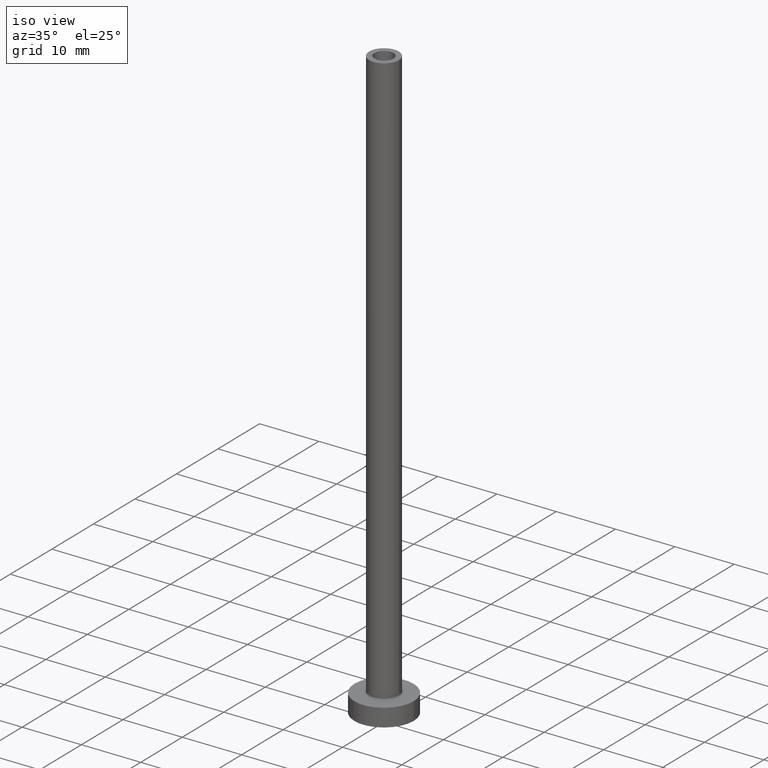
[diagram: clean part render]
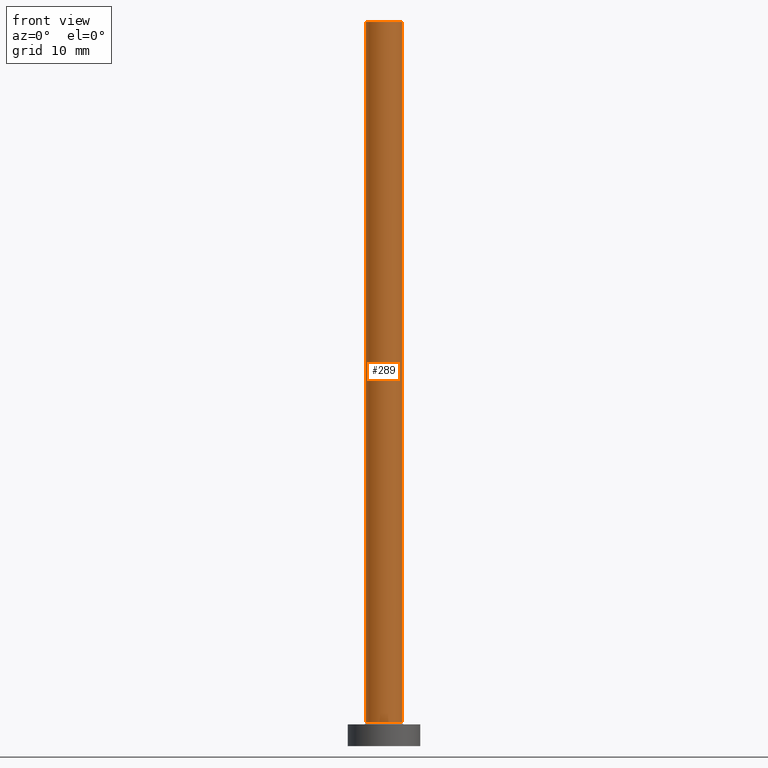
[diagram: tour spotlight — one face highlighted and labeled with its STEP entity id]
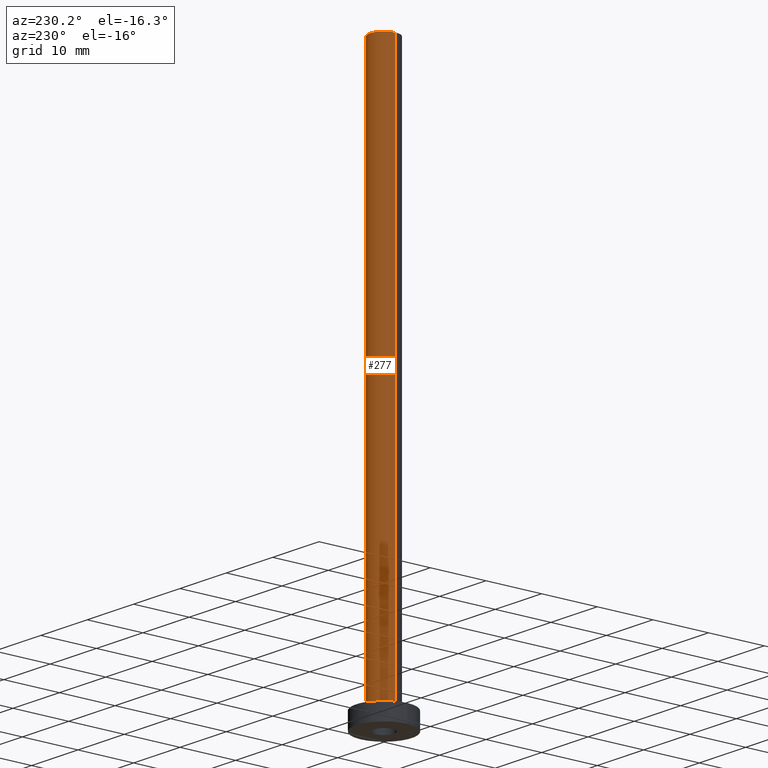
[diagram: tour spotlight — one face highlighted and labeled with its STEP entity id]
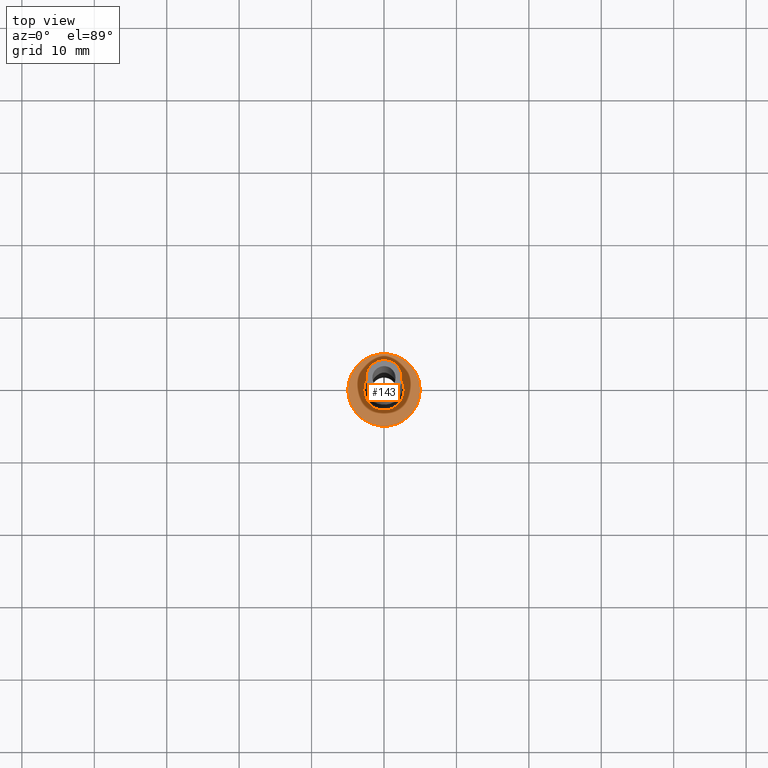
[diagram: tour spotlight — one face highlighted and labeled with its STEP entity id]
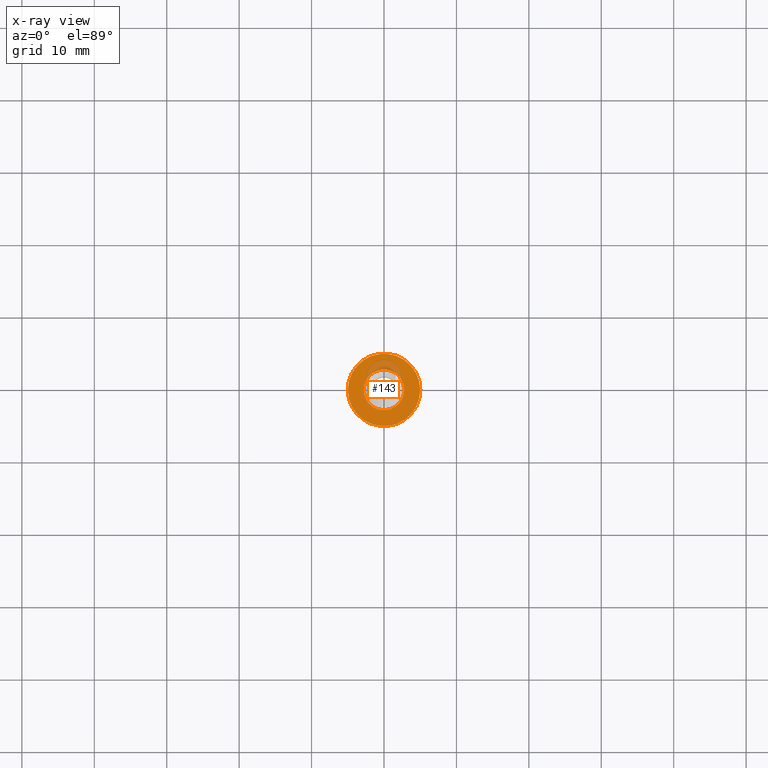
[diagram: x-ray of the same camera — body ghosted, this tour face saturated]
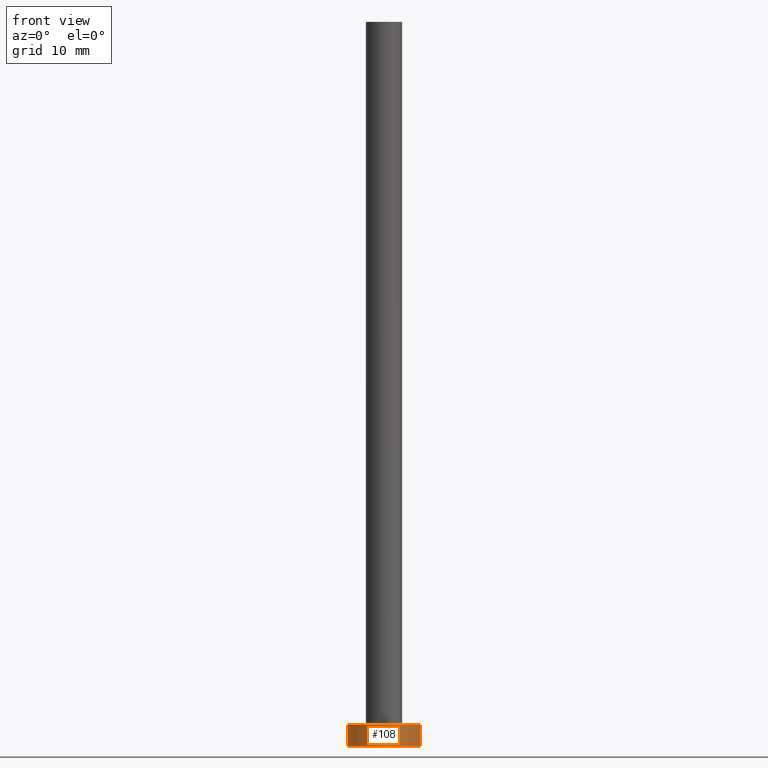
[diagram: tour spotlight — one face highlighted and labeled with its STEP entity id]
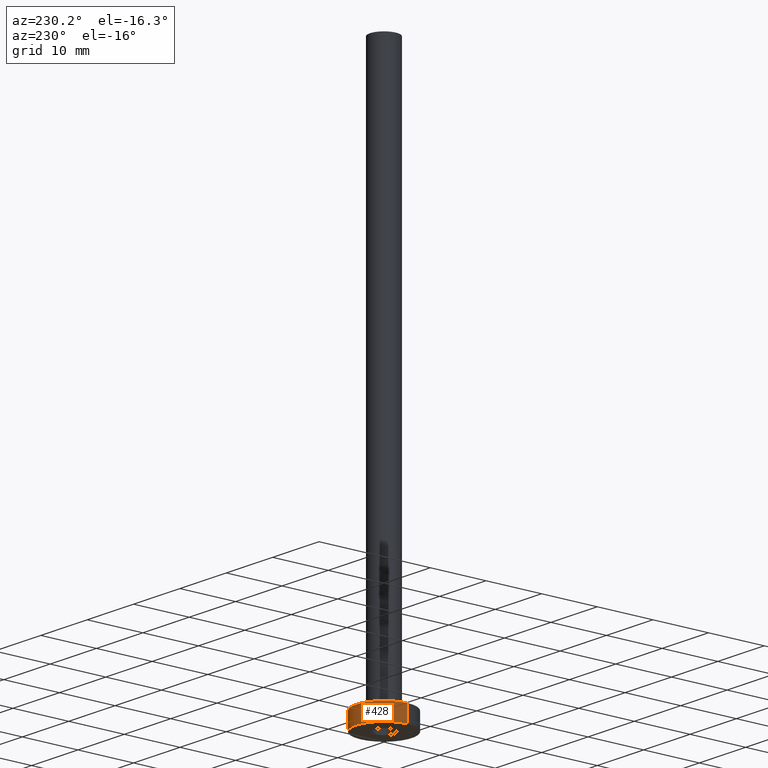
[diagram: tour spotlight — one face highlighted and labeled with its STEP entity id]
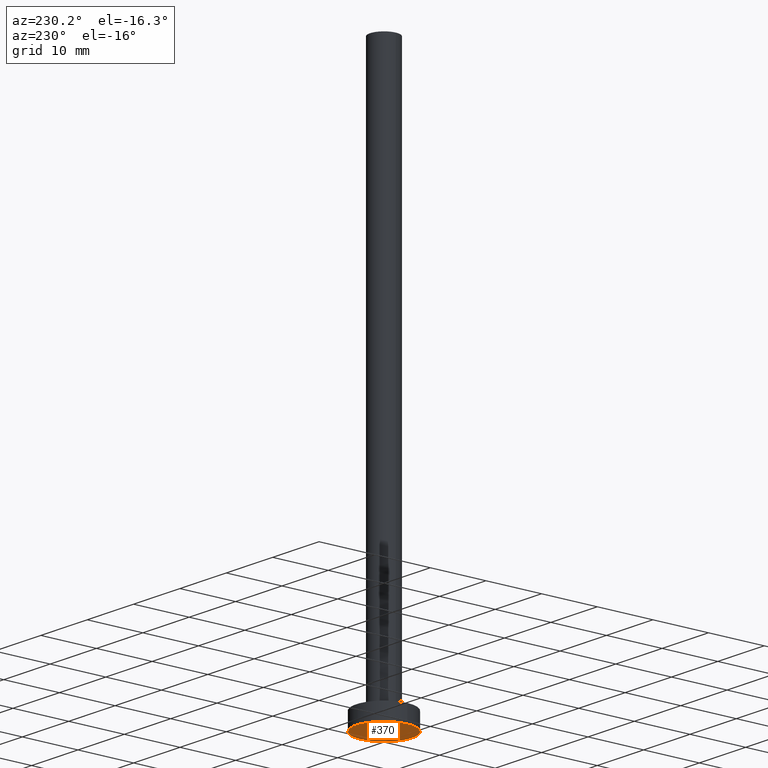
[diagram: tour spotlight — one face highlighted and labeled with its STEP entity id]
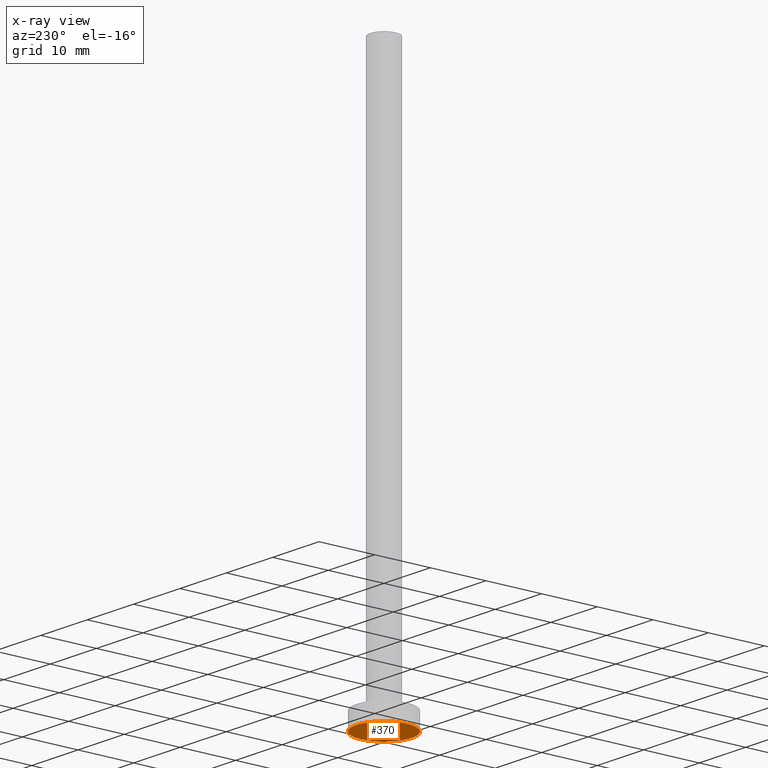
[diagram: x-ray of the same camera — body ghosted, this tour face saturated]
A machine part: a face-by-face anatomy tour. The part has 14 B-rep faces; the first image is the clean iso view, then the 6 largest visible faces are spotlighted one at a time (largest first), each with its STEP entity span.

Face 1 — front view, entity #289. In plain terms, the highlighted cylindrical surface (edge-blend (fillet) strip) has radius 2.5 mm, axis along (-0, -0, -1).
Definition (entity closure, byte-faithful):
#16 = DIRECTION ( 'NONE',  ( 0.000000000000000000, 0.000000000000000000, 1.000000000000000000 ) ) ;
#19 = FACE_OUTER_BOUND ( 'NONE', #111, .T. ) ;
#20 = ORIENTED_EDGE ( 'NONE', *, *, #394, .F. ) ;
#24 = DIRECTION ( 'NONE',  ( -1.000000000000000000, 0.000000000000000000, 0.000000000000000000 ) ) ;
#27 = CIRCLE ( 'NONE', #243, 2.500000000000000000 ) ;
#50 = CARTESIAN_POINT ( 'NONE',  ( 2.500000000000000000, 3.061616997868382648E-16, 100.0000000000000000 ) ) ;
#53 = VERTEX_POINT ( 'NONE', #264 ) ;
#67 = CARTESIAN_POINT ( 'NONE',  ( 0.000000000000000000, 0.000000000000000000, 3.299999999999997158 ) ) ;
#89 = LINE ( 'NONE', #193, #412 ) ;
#111 = EDGE_LOOP ( 'NONE', ( #332, #20, #224, #255 ) ) ;
#131 = CARTESIAN_POINT ( 'NONE',  ( 2.500000000000000000, 3.061616997868382648E-16, 3.299999999999997158 ) ) ;
#140 = VERTEX_POINT ( 'NONE', #238 ) ;
#154 = CYLINDRICAL_SURFACE ( 'NONE', #164, 2.500000000000000000 ) ;
#162 = EDGE_CURVE ( 'NONE', #53, #297, #169, .T. ) ;
#164 = AXIS2_PLACEMENT_3D ( 'NONE', #447, #409, #24 ) ;
#169 = CIRCLE ( 'NONE', #436, 2.500000000000000000 ) ;
#174 = VERTEX_POINT ( 'NONE', #276 ) ;
#181 = DIRECTION ( 'NONE',  ( 1.000000000000000000, 0.000000000000000000, 0.000000000000000000 ) ) ;
#193 = CARTESIAN_POINT ( 'NONE',  ( -2.500000000000000000, 0.000000000000000000, 100.0000000000000000 ) ) ;
#224 = ORIENTED_EDGE ( 'NONE', *, *, #444, .T. ) ;
#238 = CARTESIAN_POINT ( 'NONE',  ( -2.500000000000000000, 0.000000000000000000, 100.0000000000000000 ) ) ;
#243 = AXIS2_PLACEMENT_3D ( 'NONE', #334, #16, #181 ) ;
#255 = ORIENTED_EDGE ( 'NONE', *, *, #162, .T. ) ;
#264 = CARTESIAN_POINT ( 'NONE',  ( -2.500000000000000000, 0.000000000000000000, 3.299999999999997158 ) ) ;
#270 = DIRECTION ( 'NONE',  ( -0.000000000000000000, -0.000000000000000000, -1.000000000000000000 ) ) ;
#276 = CARTESIAN_POINT ( 'NONE',  ( 2.500000000000000000, 3.061616997868382648E-16, 100.0000000000000000 ) ) ;
#289 = ADVANCED_FACE ( 'NONE', ( #19 ), #154, .T. ) ;
#297 = VERTEX_POINT ( 'NONE', #131 ) ;
#308 = DIRECTION ( 'NONE',  ( 0.000000000000000000, 0.000000000000000000, 1.000000000000000000 ) ) ;
#319 = EDGE_CURVE ( 'NONE', #174, #297, #371, .T. ) ;
#332 = ORIENTED_EDGE ( 'NONE', *, *, #319, .F. ) ;
#334 = CARTESIAN_POINT ( 'NONE',  ( 0.000000000000000000, 0.000000000000000000, 100.0000000000000000 ) ) ;
#371 = LINE ( 'NONE', #50, #374 ) ;
#374 = VECTOR ( 'NONE', #439, 1000.000000000000000 ) ;
#394 = EDGE_CURVE ( 'NONE', #140, #174, #27, .T. ) ;
#409 = DIRECTION ( 'NONE',  ( -0.000000000000000000, -0.000000000000000000, -1.000000000000000000 ) ) ;
#412 = VECTOR ( 'NONE', #270, 1000.000000000000000 ) ;
#436 = AXIS2_PLACEMENT_3D ( 'NONE', #67, #308, #456 ) ;
#439 = DIRECTION ( 'NONE',  ( -0.000000000000000000, -0.000000000000000000, -1.000000000000000000 ) ) ;
#444 = EDGE_CURVE ( 'NONE', #140, #53, #89, .T. ) ;
#447 = CARTESIAN_POINT ( 'NONE',  ( 0.000000000000000000, 0.000000000000000000, 100.0000000000000000 ) ) ;
#456 = DIRECTION ( 'NONE',  ( 1.000000000000000000, 0.000000000000000000, 0.000000000000000000 ) ) ;

Face 2 — auxiliary view, entity #277. In plain terms, the highlighted cylindrical surface (edge-blend (fillet) strip) has radius 2.5 mm, axis along (-0, -0, -1).
Definition (entity closure, byte-faithful):
#12 = ORIENTED_EDGE ( 'NONE', *, *, #419, .F. ) ;
#26 = DIRECTION ( 'NONE',  ( 1.000000000000000000, 0.000000000000000000, 0.000000000000000000 ) ) ;
#50 = CARTESIAN_POINT ( 'NONE',  ( 2.500000000000000000, 3.061616997868382648E-16, 100.0000000000000000 ) ) ;
#53 = VERTEX_POINT ( 'NONE', #264 ) ;
#79 = CIRCLE ( 'NONE', #124, 2.500000000000000000 ) ;
#89 = LINE ( 'NONE', #193, #412 ) ;
#124 = AXIS2_PLACEMENT_3D ( 'NONE', #323, #274, #26 ) ;
#129 = EDGE_LOOP ( 'NONE', ( #12, #296, #451, #381 ) ) ;
#131 = CARTESIAN_POINT ( 'NONE',  ( 2.500000000000000000, 3.061616997868382648E-16, 3.299999999999997158 ) ) ;
#140 = VERTEX_POINT ( 'NONE', #238 ) ;
#174 = VERTEX_POINT ( 'NONE', #276 ) ;
#193 = CARTESIAN_POINT ( 'NONE',  ( -2.500000000000000000, 0.000000000000000000, 100.0000000000000000 ) ) ;
#194 = FACE_OUTER_BOUND ( 'NONE', #129, .T. ) ;
#223 = CARTESIAN_POINT ( 'NONE',  ( 0.000000000000000000, 0.000000000000000000, 3.299999999999997158 ) ) ;
#238 = CARTESIAN_POINT ( 'NONE',  ( -2.500000000000000000, 0.000000000000000000, 100.0000000000000000 ) ) ;
#241 = AXIS2_PLACEMENT_3D ( 'NONE', #223, #396, #400 ) ;
#246 = EDGE_CURVE ( 'NONE', #297, #53, #446, .T. ) ;
#264 = CARTESIAN_POINT ( 'NONE',  ( -2.500000000000000000, 0.000000000000000000, 3.299999999999997158 ) ) ;
#266 = DIRECTION ( 'NONE',  ( -1.000000000000000000, 0.000000000000000000, 0.000000000000000000 ) ) ;
#270 = DIRECTION ( 'NONE',  ( -0.000000000000000000, -0.000000000000000000, -1.000000000000000000 ) ) ;
#274 = DIRECTION ( 'NONE',  ( 0.000000000000000000, 0.000000000000000000, 1.000000000000000000 ) ) ;
#276 = CARTESIAN_POINT ( 'NONE',  ( 2.500000000000000000, 3.061616997868382648E-16, 100.0000000000000000 ) ) ;
#277 = ADVANCED_FACE ( 'NONE', ( #194 ), #335, .T. ) ;
#296 = ORIENTED_EDGE ( 'NONE', *, *, #319, .T. ) ;
#297 = VERTEX_POINT ( 'NONE', #131 ) ;
#319 = EDGE_CURVE ( 'NONE', #174, #297, #371, .T. ) ;
#323 = CARTESIAN_POINT ( 'NONE',  ( 0.000000000000000000, 0.000000000000000000, 100.0000000000000000 ) ) ;
#331 = CARTESIAN_POINT ( 'NONE',  ( 0.000000000000000000, 0.000000000000000000, 100.0000000000000000 ) ) ;
#335 = CYLINDRICAL_SURFACE ( 'NONE', #337, 2.500000000000000000 ) ;
#337 = AXIS2_PLACEMENT_3D ( 'NONE', #331, #440, #266 ) ;
#371 = LINE ( 'NONE', #50, #374 ) ;
#374 = VECTOR ( 'NONE', #439, 1000.000000000000000 ) ;
#381 = ORIENTED_EDGE ( 'NONE', *, *, #444, .F. ) ;
#396 = DIRECTION ( 'NONE',  ( 0.000000000000000000, 0.000000000000000000, 1.000000000000000000 ) ) ;
#400 = DIRECTION ( 'NONE',  ( 1.000000000000000000, 0.000000000000000000, 0.000000000000000000 ) ) ;
#412 = VECTOR ( 'NONE', #270, 1000.000000000000000 ) ;
#419 = EDGE_CURVE ( 'NONE', #174, #140, #79, .T. ) ;
#439 = DIRECTION ( 'NONE',  ( -0.000000000000000000, -0.000000000000000000, -1.000000000000000000 ) ) ;
#440 = DIRECTION ( 'NONE',  ( -0.000000000000000000, -0.000000000000000000, -1.000000000000000000 ) ) ;
#444 = EDGE_CURVE ( 'NONE', #140, #53, #89, .T. ) ;
#446 = CIRCLE ( 'NONE', #241, 2.500000000000000000 ) ;
#451 = ORIENTED_EDGE ( 'NONE', *, *, #246, .T. ) ;

Face 3 — top view, entity #143. An x-ray twin of the same camera follows (body ghosted, this face saturated) — the face is partly hidden behind the body. In plain terms, the highlighted planar face has unit normal (0, 0, 1).
Definition (entity closure, byte-faithful):
#1 = CIRCLE ( 'NONE', #62, 2.799999999999999822 ) ;
#13 = CIRCLE ( 'NONE', #110, 5.000000000000000000 ) ;
#60 = CARTESIAN_POINT ( 'NONE',  ( -2.799999999999999822, 3.429011037612589276E-16, 2.999999999999998668 ) ) ;
#62 = AXIS2_PLACEMENT_3D ( 'NONE', #278, #128, #205 ) ;
#63 = PLANE ( 'NONE',  #312 ) ;
#71 = CARTESIAN_POINT ( 'NONE',  ( 0.000000000000000000, 0.000000000000000000, 3.000000000000000000 ) ) ;
#74 = DIRECTION ( 'NONE',  ( 1.000000000000000000, 0.000000000000000000, 0.000000000000000000 ) ) ;
#80 = ORIENTED_EDGE ( 'NONE', *, *, #90, .T. ) ;
#83 = DIRECTION ( 'NONE',  ( -0.000000000000000000, -0.000000000000000000, -1.000000000000000000 ) ) ;
#90 = EDGE_CURVE ( 'NONE', #306, #420, #450, .T. ) ;
#102 = CARTESIAN_POINT ( 'NONE',  ( 0.000000000000000000, 0.000000000000000000, 3.000000000000000000 ) ) ;
#110 = AXIS2_PLACEMENT_3D ( 'NONE', #155, #118, #121 ) ;
#118 = DIRECTION ( 'NONE',  ( 0.000000000000000000, 0.000000000000000000, 1.000000000000000000 ) ) ;
#121 = DIRECTION ( 'NONE',  ( 1.000000000000000000, 0.000000000000000000, 0.000000000000000000 ) ) ;
#123 = CARTESIAN_POINT ( 'NONE',  ( 0.000000000000000000, 0.000000000000000000, 3.000000000000000000 ) ) ;
#128 = DIRECTION ( 'NONE',  ( -0.000000000000000000, -0.000000000000000000, -1.000000000000000000 ) ) ;
#132 = EDGE_CURVE ( 'NONE', #420, #306, #1, .T. ) ;
#138 = DIRECTION ( 'NONE',  ( 1.000000000000000000, 0.000000000000000000, -0.000000000000000000 ) ) ;
#143 = ADVANCED_FACE ( 'NONE', ( #345, #163 ), #63, .T. ) ;
#144 = VERTEX_POINT ( 'NONE', #454 ) ;
#155 = CARTESIAN_POINT ( 'NONE',  ( 0.000000000000000000, 0.000000000000000000, 3.000000000000000000 ) ) ;
#163 = FACE_OUTER_BOUND ( 'NONE', #221, .T. ) ;
#179 = VERTEX_POINT ( 'NONE', #313 ) ;
#190 = EDGE_LOOP ( 'NONE', ( #80, #369 ) ) ;
#205 = DIRECTION ( 'NONE',  ( 1.000000000000000000, 0.000000000000000000, 0.000000000000000000 ) ) ;
#216 = DIRECTION ( 'NONE',  ( 1.000000000000000000, 0.000000000000000000, 0.000000000000000000 ) ) ;
#221 = EDGE_LOOP ( 'NONE', ( #233, #328 ) ) ;
#233 = ORIENTED_EDGE ( 'NONE', *, *, #362, .T. ) ;
#252 = CIRCLE ( 'NONE', #304, 5.000000000000000000 ) ;
#278 = CARTESIAN_POINT ( 'NONE',  ( 0.000000000000000000, 0.000000000000000000, 3.000000000000000000 ) ) ;
#304 = AXIS2_PLACEMENT_3D ( 'NONE', #123, #395, #74 ) ;
#305 = DIRECTION ( 'NONE',  ( 0.000000000000000000, 0.000000000000000000, 1.000000000000000000 ) ) ;
#306 = VERTEX_POINT ( 'NONE', #443 ) ;
#312 = AXIS2_PLACEMENT_3D ( 'NONE', #102, #305, #138 ) ;
#313 = CARTESIAN_POINT ( 'NONE',  ( -5.000000000000000000, 0.000000000000000000, 3.000000000000000000 ) ) ;
#328 = ORIENTED_EDGE ( 'NONE', *, *, #414, .T. ) ;
#345 = FACE_BOUND ( 'NONE', #190, .T. ) ;
#362 = EDGE_CURVE ( 'NONE', #179, #144, #13, .T. ) ;
#369 = ORIENTED_EDGE ( 'NONE', *, *, #132, .T. ) ;
#395 = DIRECTION ( 'NONE',  ( 0.000000000000000000, 0.000000000000000000, 1.000000000000000000 ) ) ;
#408 = AXIS2_PLACEMENT_3D ( 'NONE', #71, #83, #216 ) ;
#414 = EDGE_CURVE ( 'NONE', #144, #179, #252, .T. ) ;
#420 = VERTEX_POINT ( 'NONE', #60 ) ;
#443 = CARTESIAN_POINT ( 'NONE',  ( 2.799999999999999822, 0.000000000000000000, 2.999999999999998668 ) ) ;
#450 = CIRCLE ( 'NONE', #408, 2.799999999999999822 ) ;
#454 = CARTESIAN_POINT ( 'NONE',  ( 5.000000000000000000, 6.123233995736766282E-16, 3.000000000000000000 ) ) ;

Face 4 — front view, entity #108. In plain terms, the highlighted cylindrical surface (edge-blend (fillet) strip) has radius 5 mm, axis along (-0, -0, -1).
Definition (entity closure, byte-faithful):
#13 = CIRCLE ( 'NONE', #110, 5.000000000000000000 ) ;
#17 = EDGE_CURVE ( 'NONE', #445, #213, #342, .T. ) ;
#28 = CARTESIAN_POINT ( 'NONE',  ( 0.000000000000000000, 0.000000000000000000, 3.000000000000000000 ) ) ;
#35 = ORIENTED_EDGE ( 'NONE', *, *, #324, .F. ) ;
#44 = ORIENTED_EDGE ( 'NONE', *, *, #95, .T. ) ;
#55 = VECTOR ( 'NONE', #365, 1000.000000000000000 ) ;
#77 = DIRECTION ( 'NONE',  ( -0.000000000000000000, -0.000000000000000000, -1.000000000000000000 ) ) ;
#87 = VECTOR ( 'NONE', #77, 1000.000000000000000 ) ;
#92 = CARTESIAN_POINT ( 'NONE',  ( -5.000000000000000000, 0.000000000000000000, 0.000000000000000000 ) ) ;
#95 = EDGE_CURVE ( 'NONE', #179, #445, #357, .T. ) ;
#100 = CYLINDRICAL_SURFACE ( 'NONE', #201, 5.000000000000000000 ) ;
#108 = ADVANCED_FACE ( 'NONE', ( #170 ), #100, .T. ) ;
#110 = AXIS2_PLACEMENT_3D ( 'NONE', #155, #118, #121 ) ;
#118 = DIRECTION ( 'NONE',  ( 0.000000000000000000, 0.000000000000000000, 1.000000000000000000 ) ) ;
#121 = DIRECTION ( 'NONE',  ( 1.000000000000000000, 0.000000000000000000, 0.000000000000000000 ) ) ;
#144 = VERTEX_POINT ( 'NONE', #454 ) ;
#155 = CARTESIAN_POINT ( 'NONE',  ( 0.000000000000000000, 0.000000000000000000, 3.000000000000000000 ) ) ;
#170 = FACE_OUTER_BOUND ( 'NONE', #283, .T. ) ;
#179 = VERTEX_POINT ( 'NONE', #313 ) ;
#201 = AXIS2_PLACEMENT_3D ( 'NONE', #28, #240, #422 ) ;
#213 = VERTEX_POINT ( 'NONE', #430 ) ;
#240 = DIRECTION ( 'NONE',  ( -0.000000000000000000, -0.000000000000000000, -1.000000000000000000 ) ) ;
#253 = ORIENTED_EDGE ( 'NONE', *, *, #17, .T. ) ;
#283 = EDGE_LOOP ( 'NONE', ( #35, #385, #44, #253 ) ) ;
#286 = DIRECTION ( 'NONE',  ( 0.000000000000000000, 0.000000000000000000, 1.000000000000000000 ) ) ;
#313 = CARTESIAN_POINT ( 'NONE',  ( -5.000000000000000000, 0.000000000000000000, 3.000000000000000000 ) ) ;
#324 = EDGE_CURVE ( 'NONE', #144, #213, #358, .T. ) ;
#342 = CIRCLE ( 'NONE', #372, 5.000000000000000000 ) ;
#357 = LINE ( 'NONE', #401, #55 ) ;
#358 = LINE ( 'NONE', #364, #87 ) ;
#362 = EDGE_CURVE ( 'NONE', #179, #144, #13, .T. ) ;
#364 = CARTESIAN_POINT ( 'NONE',  ( 5.000000000000000000, 6.123233995736766282E-16, 3.000000000000000000 ) ) ;
#365 = DIRECTION ( 'NONE',  ( -0.000000000000000000, -0.000000000000000000, -1.000000000000000000 ) ) ;
#372 = AXIS2_PLACEMENT_3D ( 'NONE', #441, #286, #391 ) ;
#385 = ORIENTED_EDGE ( 'NONE', *, *, #362, .F. ) ;
#391 = DIRECTION ( 'NONE',  ( 1.000000000000000000, 0.000000000000000000, 0.000000000000000000 ) ) ;
#401 = CARTESIAN_POINT ( 'NONE',  ( -5.000000000000000000, 0.000000000000000000, 3.000000000000000000 ) ) ;
#422 = DIRECTION ( 'NONE',  ( -1.000000000000000000, 0.000000000000000000, 0.000000000000000000 ) ) ;
#430 = CARTESIAN_POINT ( 'NONE',  ( 5.000000000000000000, 6.123233995736766282E-16, 0.000000000000000000 ) ) ;
#441 = CARTESIAN_POINT ( 'NONE',  ( 0.000000000000000000, 0.000000000000000000, 0.000000000000000000 ) ) ;
#445 = VERTEX_POINT ( 'NONE', #92 ) ;
#454 = CARTESIAN_POINT ( 'NONE',  ( 5.000000000000000000, 6.123233995736766282E-16, 3.000000000000000000 ) ) ;

Face 5 — auxiliary view, entity #428. In plain terms, the highlighted cylindrical surface (edge-blend (fillet) strip) has radius 5 mm, axis along (-0, -0, -1).
Definition (entity closure, byte-faithful):
#23 = DIRECTION ( 'NONE',  ( -1.000000000000000000, 0.000000000000000000, 0.000000000000000000 ) ) ;
#55 = VECTOR ( 'NONE', #365, 1000.000000000000000 ) ;
#74 = DIRECTION ( 'NONE',  ( 1.000000000000000000, 0.000000000000000000, 0.000000000000000000 ) ) ;
#77 = DIRECTION ( 'NONE',  ( -0.000000000000000000, -0.000000000000000000, -1.000000000000000000 ) ) ;
#87 = VECTOR ( 'NONE', #77, 1000.000000000000000 ) ;
#92 = CARTESIAN_POINT ( 'NONE',  ( -5.000000000000000000, 0.000000000000000000, 0.000000000000000000 ) ) ;
#95 = EDGE_CURVE ( 'NONE', #179, #445, #357, .T. ) ;
#123 = CARTESIAN_POINT ( 'NONE',  ( 0.000000000000000000, 0.000000000000000000, 3.000000000000000000 ) ) ;
#144 = VERTEX_POINT ( 'NONE', #454 ) ;
#179 = VERTEX_POINT ( 'NONE', #313 ) ;
#195 = CYLINDRICAL_SURFACE ( 'NONE', #458, 5.000000000000000000 ) ;
#197 = ORIENTED_EDGE ( 'NONE', *, *, #95, .F. ) ;
#212 = DIRECTION ( 'NONE',  ( 0.000000000000000000, 0.000000000000000000, 1.000000000000000000 ) ) ;
#213 = VERTEX_POINT ( 'NONE', #430 ) ;
#234 = CARTESIAN_POINT ( 'NONE',  ( 0.000000000000000000, 0.000000000000000000, 3.000000000000000000 ) ) ;
#237 = DIRECTION ( 'NONE',  ( -0.000000000000000000, -0.000000000000000000, -1.000000000000000000 ) ) ;
#252 = CIRCLE ( 'NONE', #304, 5.000000000000000000 ) ;
#257 = EDGE_CURVE ( 'NONE', #213, #445, #452, .T. ) ;
#299 = ORIENTED_EDGE ( 'NONE', *, *, #414, .F. ) ;
#301 = ORIENTED_EDGE ( 'NONE', *, *, #257, .T. ) ;
#304 = AXIS2_PLACEMENT_3D ( 'NONE', #123, #395, #74 ) ;
#313 = CARTESIAN_POINT ( 'NONE',  ( -5.000000000000000000, 0.000000000000000000, 3.000000000000000000 ) ) ;
#322 = AXIS2_PLACEMENT_3D ( 'NONE', #390, #212, #355 ) ;
#324 = EDGE_CURVE ( 'NONE', #144, #213, #358, .T. ) ;
#333 = EDGE_LOOP ( 'NONE', ( #299, #416, #301, #197 ) ) ;
#355 = DIRECTION ( 'NONE',  ( 1.000000000000000000, 0.000000000000000000, 0.000000000000000000 ) ) ;
#357 = LINE ( 'NONE', #401, #55 ) ;
#358 = LINE ( 'NONE', #364, #87 ) ;
#364 = CARTESIAN_POINT ( 'NONE',  ( 5.000000000000000000, 6.123233995736766282E-16, 3.000000000000000000 ) ) ;
#365 = DIRECTION ( 'NONE',  ( -0.000000000000000000, -0.000000000000000000, -1.000000000000000000 ) ) ;
#390 = CARTESIAN_POINT ( 'NONE',  ( 0.000000000000000000, 0.000000000000000000, 0.000000000000000000 ) ) ;
#395 = DIRECTION ( 'NONE',  ( 0.000000000000000000, 0.000000000000000000, 1.000000000000000000 ) ) ;
#401 = CARTESIAN_POINT ( 'NONE',  ( -5.000000000000000000, 0.000000000000000000, 3.000000000000000000 ) ) ;
#414 = EDGE_CURVE ( 'NONE', #144, #179, #252, .T. ) ;
#416 = ORIENTED_EDGE ( 'NONE', *, *, #324, .T. ) ;
#417 = FACE_OUTER_BOUND ( 'NONE', #333, .T. ) ;
#428 = ADVANCED_FACE ( 'NONE', ( #417 ), #195, .T. ) ;
#430 = CARTESIAN_POINT ( 'NONE',  ( 5.000000000000000000, 6.123233995736766282E-16, 0.000000000000000000 ) ) ;
#445 = VERTEX_POINT ( 'NONE', #92 ) ;
#452 = CIRCLE ( 'NONE', #322, 5.000000000000000000 ) ;
#454 = CARTESIAN_POINT ( 'NONE',  ( 5.000000000000000000, 6.123233995736766282E-16, 3.000000000000000000 ) ) ;
#458 = AXIS2_PLACEMENT_3D ( 'NONE', #234, #237, #23 ) ;

Face 6 — auxiliary view, entity #370. An x-ray twin of the same camera follows (body ghosted, this face saturated) — the face is partly hidden behind the body. In plain terms, the highlighted planar face has unit normal (0, 0, 1).
Definition (entity closure, byte-faithful):
#3 = CIRCLE ( 'NONE', #119, 1.750000000000000000 ) ;
#6 = DIRECTION ( 'NONE',  ( 1.000000000000000000, 0.000000000000000000, -0.000000000000000000 ) ) ;
#9 = DIRECTION ( 'NONE',  ( -0.000000000000000000, -0.000000000000000000, -1.000000000000000000 ) ) ;
#17 = EDGE_CURVE ( 'NONE', #445, #213, #342, .T. ) ;
#64 = EDGE_LOOP ( 'NONE', ( #321, #91 ) ) ;
#91 = ORIENTED_EDGE ( 'NONE', *, *, #257, .F. ) ;
#92 = CARTESIAN_POINT ( 'NONE',  ( -5.000000000000000000, 0.000000000000000000, 0.000000000000000000 ) ) ;
#119 = AXIS2_PLACEMENT_3D ( 'NONE', #317, #9, #437 ) ;
#125 = CARTESIAN_POINT ( 'NONE',  ( 0.000000000000000000, 0.000000000000000000, 0.000000000000000000 ) ) ;
#153 = DIRECTION ( 'NONE',  ( 0.000000000000000000, 0.000000000000000000, 1.000000000000000000 ) ) ;
#161 = DIRECTION ( 'NONE',  ( -0.000000000000000000, -0.000000000000000000, -1.000000000000000000 ) ) ;
#183 = VERTEX_POINT ( 'NONE', #310 ) ;
#186 = FACE_OUTER_BOUND ( 'NONE', #64, .T. ) ;
#191 = FACE_BOUND ( 'NONE', #410, .T. ) ;
#204 = CIRCLE ( 'NONE', #418, 1.750000000000000000 ) ;
#208 = EDGE_CURVE ( 'NONE', #268, #183, #3, .T. ) ;
#212 = DIRECTION ( 'NONE',  ( 0.000000000000000000, 0.000000000000000000, 1.000000000000000000 ) ) ;
#213 = VERTEX_POINT ( 'NONE', #430 ) ;
#257 = EDGE_CURVE ( 'NONE', #213, #445, #452, .T. ) ;
#268 = VERTEX_POINT ( 'NONE', #413 ) ;
#286 = DIRECTION ( 'NONE',  ( 0.000000000000000000, 0.000000000000000000, 1.000000000000000000 ) ) ;
#298 = CARTESIAN_POINT ( 'NONE',  ( 0.000000000000000000, 0.000000000000000000, 0.000000000000000000 ) ) ;
#310 = CARTESIAN_POINT ( 'NONE',  ( -1.750000000000000000, 0.000000000000000000, 0.000000000000000000 ) ) ;
#311 = ORIENTED_EDGE ( 'NONE', *, *, #208, .F. ) ;
#317 = CARTESIAN_POINT ( 'NONE',  ( 0.000000000000000000, 0.000000000000000000, 0.000000000000000000 ) ) ;
#321 = ORIENTED_EDGE ( 'NONE', *, *, #17, .F. ) ;
#322 = AXIS2_PLACEMENT_3D ( 'NONE', #390, #212, #355 ) ;
#330 = PLANE ( 'NONE',  #392 ) ;
#342 = CIRCLE ( 'NONE', #372, 5.000000000000000000 ) ;
#355 = DIRECTION ( 'NONE',  ( 1.000000000000000000, 0.000000000000000000, 0.000000000000000000 ) ) ;
#360 = ORIENTED_EDGE ( 'NONE', *, *, #449, .F. ) ;
#370 = ADVANCED_FACE ( 'NONE', ( #191, #186 ), #330, .F. ) ;
#372 = AXIS2_PLACEMENT_3D ( 'NONE', #441, #286, #391 ) ;
#390 = CARTESIAN_POINT ( 'NONE',  ( 0.000000000000000000, 0.000000000000000000, 0.000000000000000000 ) ) ;
#391 = DIRECTION ( 'NONE',  ( 1.000000000000000000, 0.000000000000000000, 0.000000000000000000 ) ) ;
#392 = AXIS2_PLACEMENT_3D ( 'NONE', #298, #153, #6 ) ;
#410 = EDGE_LOOP ( 'NONE', ( #360, #311 ) ) ;
#413 = CARTESIAN_POINT ( 'NONE',  ( 1.750000000000000000, 2.143131898507868297E-16, 0.000000000000000000 ) ) ;
#418 = AXIS2_PLACEMENT_3D ( 'NONE', #125, #161, #421 ) ;
#421 = DIRECTION ( 'NONE',  ( 1.000000000000000000, 0.000000000000000000, 0.000000000000000000 ) ) ;
#430 = CARTESIAN_POINT ( 'NONE',  ( 5.000000000000000000, 6.123233995736766282E-16, 0.000000000000000000 ) ) ;
#437 = DIRECTION ( 'NONE',  ( 1.000000000000000000, 0.000000000000000000, 0.000000000000000000 ) ) ;
#441 = CARTESIAN_POINT ( 'NONE',  ( 0.000000000000000000, 0.000000000000000000, 0.000000000000000000 ) ) ;
#445 = VERTEX_POINT ( 'NONE', #92 ) ;
#449 = EDGE_CURVE ( 'NONE', #183, #268, #204, .T. ) ;
#452 = CIRCLE ( 'NONE', #322, 5.000000000000000000 ) ;